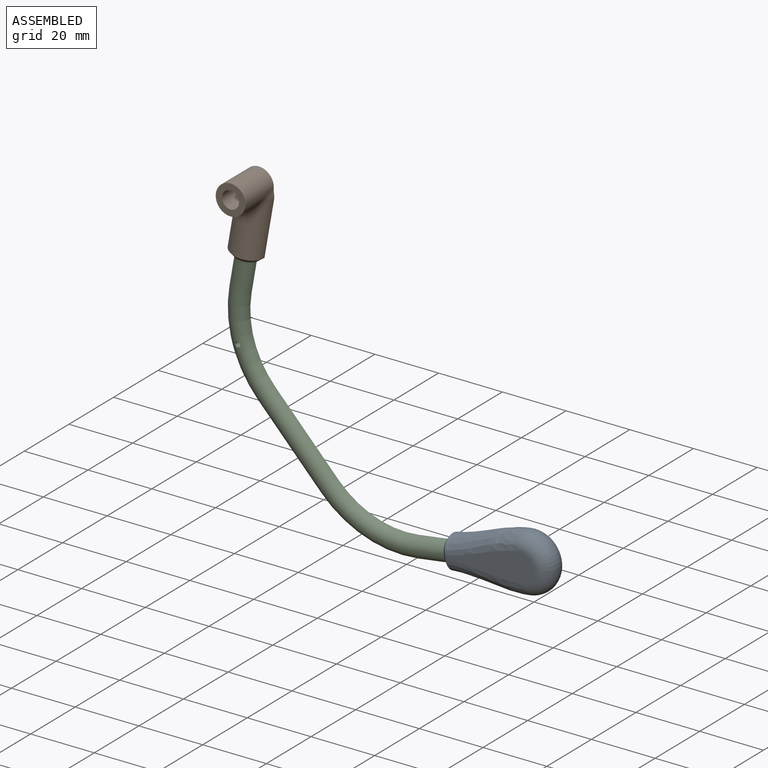
[diagram: assembled view]
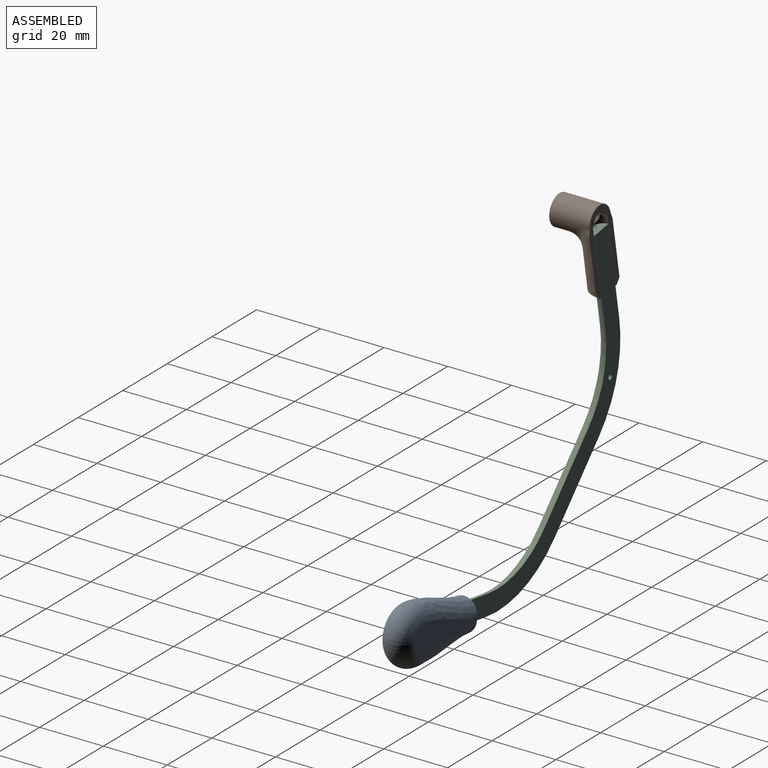
[diagram: assembled view, second angle]
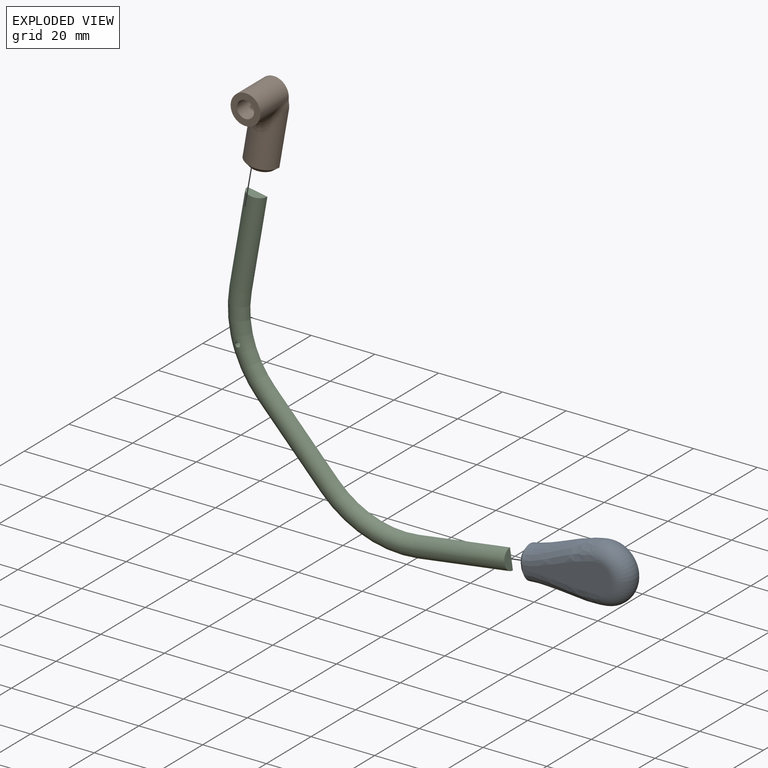
[diagram: exploded view]
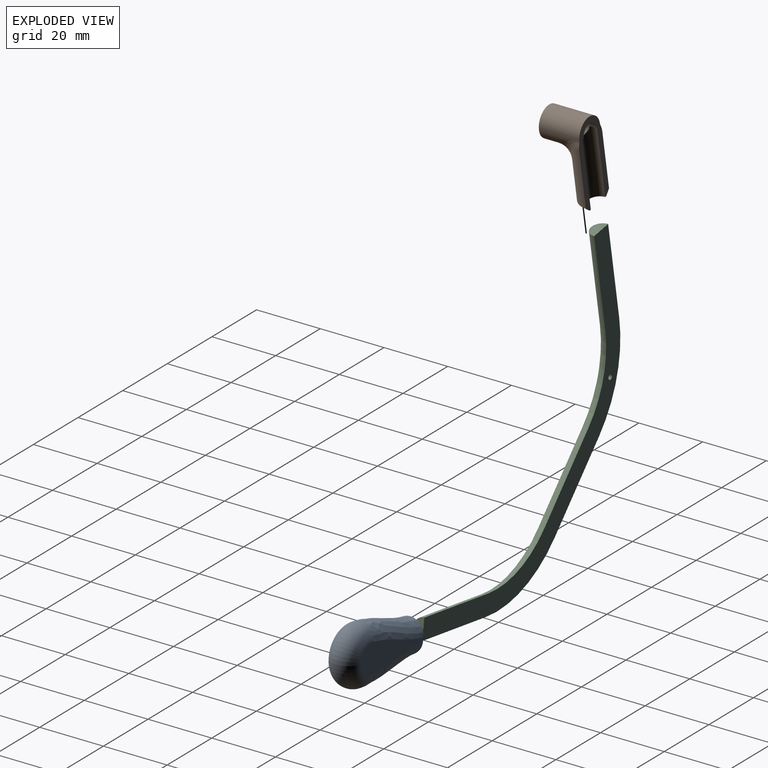
[diagram: exploded view, second angle]
ASSEMBLY  parts=3 mates=2
PART A: 12 faces, bbox 29.9x9.4x18.3 mm
  f0: plane 28.57x9.32mm, normal (0,1,0), area 155.3mm2, adj f3,f4,f8,f9
  f1: plane 28.52x9.32mm, normal (0,-1,0), area 155.2mm2, adj f3,f4,f5,f9
  f2: plane 7.66x6.61mm, normal (-1,0,-0.05), area 9.5mm2, adj f5,f6,f7,f8,f10
  f3: bspline ~23.75x9.72mm, area 341.7mm2, adj f0,f1,f6,f9
  f4: bspline ~24.16x9.1mm, area 341.7mm2, adj f0,f1,f7,f9
  f5: plane 1.3x1.25mm, normal (-0.71,-0.71,-0.04), area 1.9mm2, adj f1,f2,f6,f7
  f6: bspline ~9.1x4.6mm, area 21.5mm2, adj f2,f3,f5,f8
  f7: bspline ~9.1x4.54mm, area 21.5mm2, adj f2,f4,f5,f8
  f8: plane 1.3x1.25mm, normal (-0.71,0.71,-0.04), area 1.9mm2, adj f0,f2,f6,f7
  f9: torus R=4.47mm, axis (0,-1,0), area 331mm2, adj f0,f1,f3,f4
  f10: cylinder r=3.17mm len=19.35mm, axis (-1,0,-0.05), area 380mm2, adj f2,f11
  f11: plane 6.35x6.34mm, normal (-1,0,-0.05), area 31.7mm2, adj f10
PART B: 15 faces, bbox 10.6x13.3x26.4 mm
  f0: cylinder r=4.68mm len=12.7mm, axis (0,1,0), area 266mm2, adj f2,f3,f11,f12,f13
  f1: cylinder r=2.68mm len=12.7mm, axis (0,1,0), area 191.7mm2, adj f2,f3,f4,f5,f6
  f2: plane 9.36x9.36mm, normal (0,-1,0), area 46.2mm2, adj f0,f1
  f3: plane 26.41x10.55mm, normal (0,1,0), area 106.6mm2, adj f0,f1,f4,f5,f6,f7,f8,f9
  f4: cylinder r=3.28mm len=21.73mm, axis (0,0,-1), area 211mm2, adj f1,f3,f5,f6,f10
  f5: plane 1.88x0.6mm, normal (0,0,-1), area 0.8mm2, adj f1,f3,f4
  f6: plane 1.88x0.6mm, normal (0,0,-1), area 0.8mm2, adj f1,f3,f4
  f7: cylinder r=5.28mm len=17.55mm, axis (0,0,1), area 234.5mm2, adj f3,f8,f9,f12,f14
  f8: sphere r=5.28mm, area 2.8mm2, adj f3,f7,f13
  f9: sphere r=5.28mm, area 2.8mm2, adj f3,f7,f11
  f10: plane 7.55x3.78mm, normal (0,0,-1), area 5.5mm2, adj f3,f4,f14
  f11: bspline ~5.31x3.36mm, area 6.9mm2, adj f0,f3,f9,f12
  f12: bspline ~9.78x8.86mm, area 84.8mm2, adj f0,f7,f11,f13
  f13: bspline ~5.31x3.36mm, area 6.9mm2, adj f0,f3,f8,f12
  f14: cone r=5.28mm half-angle=45deg, axis (0,0,1), area 30.2mm2, adj f3,f7,f10
PART C: 9 faces, bbox 86.8x5.4x98.1 mm
  f0: plane 6.13x3.18mm, normal (0.26,0,0.97), area 15.8mm2, adj f2,f3
  f1: plane 6.34x3.18mm, normal (1,0,0.05), area 15.8mm2, adj f2,f7
  f2: plane 95.15x83.91mm, normal (0,1,0), area 933.6mm2, adj f0,f1,f3,f4,f5,f6,f7,f8
  f3: cylinder r=3.17mm len=29.52mm, axis (-0.26,0,-0.97), area 287.8mm2, adj f0,f2,f4
  f4: torus R=32.24mm, axis (0,-1,0), area 296.4mm2, adj f2,f3,f5,f8
  f5: cylinder r=3.17mm len=26.61mm, axis (0.62,0,-0.79), area 287.8mm2, adj f2,f4,f6
  f6: torus R=32.24mm, axis (0,-1,0), area 307.6mm2, adj f2,f5,f7
  f7: cylinder r=3.17mm len=29.15mm, axis (1,0,0.05), area 287.8mm2, adj f1,f2,f6
  f8: cylinder r=0.8mm len=3.18mm, axis (0,1,0), area 15.7mm2, adj f2,f4
PLACE A rot(axis=(0,-1,0),5.1deg) t=(-67.04,-0.38,46.78)mm
PLACE B rot(axis=(0,1,0),9.9deg) t=(-146.54,-0.38,77.85)mm
PLACE C rot(axis=(0,-1,0),5.1deg) t=(-72.93,-0.38,45.95)mm
MATE fastened B.f4 <-> C.f3  axis (0.17,0,0.99) through (-146.54,-0.38,77.85)mm
MATE fastened C.f7 <-> A.f10  axis (0.99,0,0.14) through (-66.82,-0.38,-4.97)mm
